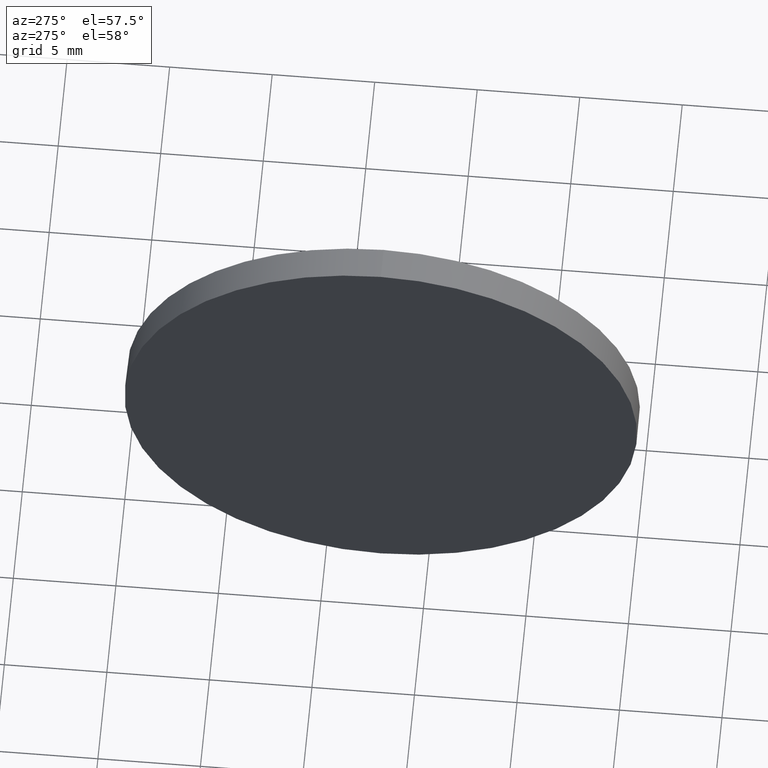
[diagram: clean part render]
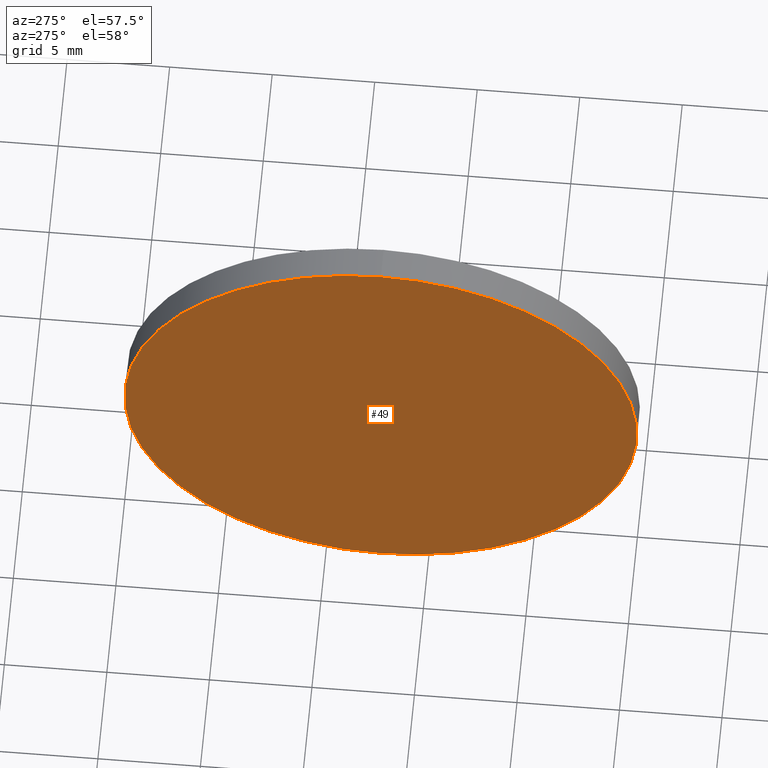
[diagram: same view with one face highlighted and labeled with its STEP entity id]
A machine part, auxiliary view. The second image highlights one B-rep face of the part: STEP entity #49.
In plain terms, the highlighted planar face has unit normal (1, 0, 0).
Its self-contained STEP definition (entity closure, byte-faithful):
#1 = CARTESIAN_POINT ( 'NONE',  ( 482.6463922224538700, 32.31075153967162800, 0.0000000000000000000 ) ) ;
#4 = FACE_OUTER_BOUND ( 'NONE', #121, .T. ) ;
#7 = CIRCLE ( 'NONE', #77, 12.50000000000000400 ) ;
#12 = CARTESIAN_POINT ( 'NONE',  ( 482.6463922224538700, 32.31075153967162800, 0.0000000000000000000 ) ) ;
#14 = CARTESIAN_POINT ( 'NONE',  ( 482.6463922224538700, 32.31075153967162800, 12.50000000000000400 ) ) ;
#42 = AXIS2_PLACEMENT_3D ( 'NONE', #1, #172, #90 ) ;
#49 = ADVANCED_FACE ( 'NONE', ( #4 ), #125, .F. ) ;
#69 = DIRECTION ( 'NONE',  ( 1.000000000000000000, 0.0000000000000000000, 0.0000000000000000000 ) ) ;
#71 = DIRECTION ( 'NONE',  ( -1.000000000000000000, -0.0000000000000000000, -0.0000000000000000000 ) ) ;
#72 = CARTESIAN_POINT ( 'NONE',  ( 482.6463922224538700, 32.31075153967162800, 0.0000000000000000000 ) ) ;
#77 = AXIS2_PLACEMENT_3D ( 'NONE', #72, #71, #183 ) ;
#79 = ORIENTED_EDGE ( 'NONE', *, *, #109, .T. ) ;
#80 = AXIS2_PLACEMENT_3D ( 'NONE', #12, #69, #168 ) ;
#86 = EDGE_CURVE ( 'NONE', #171, #92, #7, .T. ) ;
#90 = DIRECTION ( 'NONE',  ( 0.0000000000000000000, 0.0000000000000000000, 1.000000000000000000 ) ) ;
#92 = VERTEX_POINT ( 'NONE', #14 ) ;
#109 = EDGE_CURVE ( 'NONE', #92, #171, #144, .T. ) ;
#121 = EDGE_LOOP ( 'NONE', ( #79, #156 ) ) ;
#125 = PLANE ( 'NONE',  #80 ) ;
#126 = CARTESIAN_POINT ( 'NONE',  ( 482.6463922224538700, 32.31075153967162800, -12.50000000000000400 ) ) ;
#144 = CIRCLE ( 'NONE', #42, 12.50000000000000400 ) ;
#156 = ORIENTED_EDGE ( 'NONE', *, *, #86, .T. ) ;
#168 = DIRECTION ( 'NONE',  ( 0.0000000000000000000, 0.0000000000000000000, -1.000000000000000000 ) ) ;
#171 = VERTEX_POINT ( 'NONE', #126 ) ;
#172 = DIRECTION ( 'NONE',  ( -1.000000000000000000, -0.0000000000000000000, -0.0000000000000000000 ) ) ;
#183 = DIRECTION ( 'NONE',  ( 0.0000000000000000000, 0.0000000000000000000, 1.000000000000000000 ) ) ;